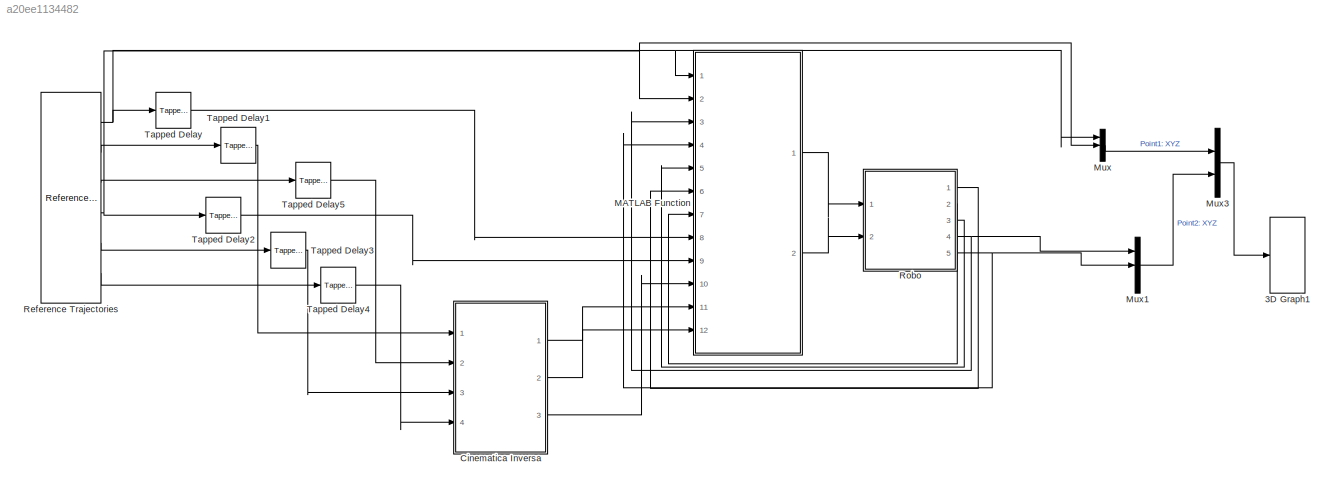
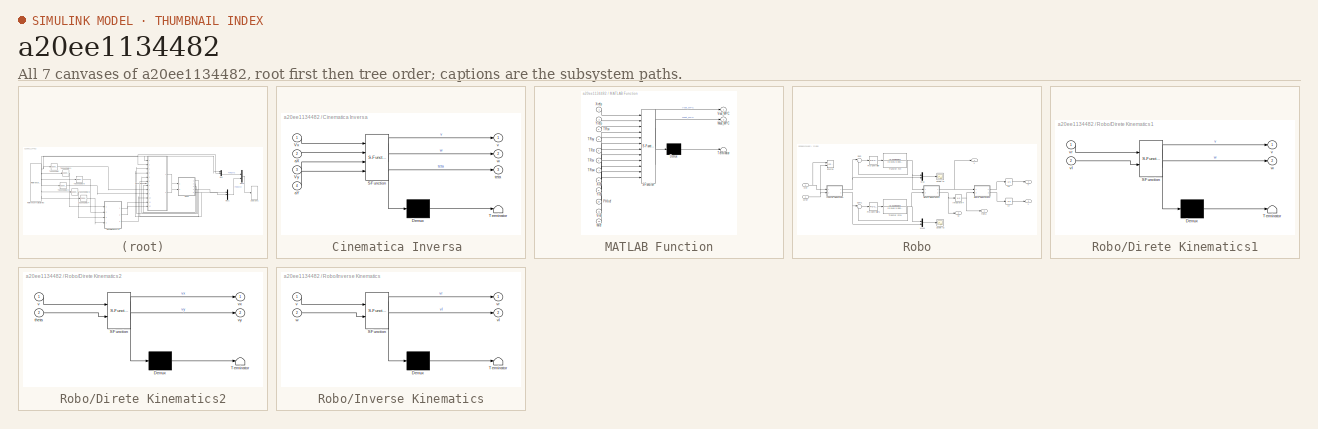
[diagram: thumbnail index - all 7 canvases of the model, root first then tree order]
MODEL slx_a20ee1134482
KIND model
CONFIG AbsTol = auto
CONFIG EnableMultiTasking = off
CONFIG FixedStep = 0.04
CONFIG MaxStep = auto
CONFIG MinStep = auto
CONFIG RelTol = 1e-3
CONFIG SampleTimeConstraint = Unconstrained
CONFIG Solver = ode4
CONFIG SolverName = ode4
CONFIG StartTime = 0.0
CONFIG StopTime = 100
BLOCK [S-Function] 3D Graph1
  CopyFcn = if exist('sfun3d','file'), sfun3d([],[],[],'CopyBlock'); end
  DeleteFcn = if exist('sfun3d','file'), sfun3d([],[],[],'DeleteBlock'); end
  EnableBusSupport = off
  FunctionName = sfun3d
  LoadFcn = if exist('sfun3d','file'), sfun3d([],[],[],'LoadBlock'); end
  NameChangeFcn = if exist('sfun3d','file'), sfun3d([],[],[],'NameChange'); end
  Parameters = ax,T,np,cp,gd,ls,mk,mx,hd,tb
  Ports = [1]
  SFcnIsStateOwnerBlock = off
  SFunctionDeploymentMode = off
BLOCK [SubSystem] Cinematica Inversa 
  ErrorFcn = Stateflow.Translate.translate
  PermitHierarchicalResolution = ExplicitOnly
  Ports = [4, 3]
  RequestExecContextInheritance = off
  SFBlockType = MATLAB Function
  TreatAsAtomicUnit = on
BLOCK [Demux] Cinematica Inversa / Demux 
  Outputs = 1
  Ports = [1, 1]
BLOCK [S-Function] Cinematica Inversa / SFunction 
  EnableBusSupport = on
  FunctionName = sf_sfun
  PortCounts = [4 4]
  Ports = [4, 4]
  SFcnIsStateOwnerBlock = off
  SFunctionDeploymentMode = off
  Tag = Stateflow S-Function modeloSimulink 5
BLOCK [Terminator] Cinematica Inversa / Terminator 
BLOCK [Inport] Cinematica Inversa /Vx
  IconDisplay = Port number
BLOCK [Inport] Cinematica Inversa /Vy
  IconDisplay = Port number
  Port = 3
BLOCK [Inport] Cinematica Inversa /aX
  IconDisplay = Port number
  Port = 2
BLOCK [Inport] Cinematica Inversa /aY
  IconDisplay = Port number
  Port = 4
BLOCK [Outport] Cinematica Inversa /teta
  IconDisplay = Port number
  Port = 3
BLOCK [Outport] Cinematica Inversa /v
  IconDisplay = Port number
BLOCK [Outport] Cinematica Inversa /w
  IconDisplay = Port number
  Port = 2
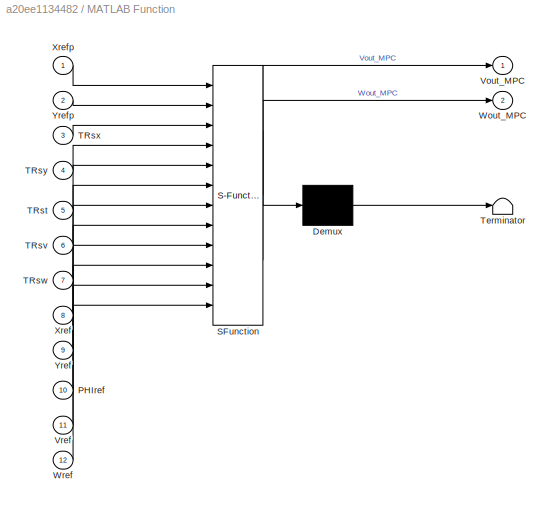
BLOCK [SubSystem] MATLAB Function
  ErrorFcn = Stateflow.Translate.translate
  PermitHierarchicalResolution = ExplicitOnly
  Ports = [12, 2]
  RequestExecContextInheritance = off
  SFBlockType = MATLAB Function
  TreatAsAtomicUnit = on
BLOCK [Demux] MATLAB Function/ Demux 
  Outputs = 1
  Ports = [1, 1]
BLOCK [S-Function] MATLAB Function/ SFunction 
  EnableBusSupport = on
  FunctionName = sf_sfun
  PortCounts = [12 3]
  Ports = [12, 3]
  SFcnIsStateOwnerBlock = off
  SFunctionDeploymentMode = off
  Tag = Stateflow S-Function modeloSimulink 4
BLOCK [Terminator] MATLAB Function/ Terminator 
BLOCK [Inport] MATLAB Function/PHIref
  IconDisplay = Port number
  Port = 10
BLOCK [Inport] MATLAB Function/TRst
  IconDisplay = Port number
  Port = 5
BLOCK [Inport] MATLAB Function/TRsv
  IconDisplay = Port number
  Port = 6
BLOCK [Inport] MATLAB Function/TRsw
  IconDisplay = Port number
  Port = 7
BLOCK [Inport] MATLAB Function/TRsx
  IconDisplay = Port number
  Port = 3
BLOCK [Inport] MATLAB Function/TRsy
  IconDisplay = Port number
  Port = 4
BLOCK [Outport] MATLAB Function/Vout_MPC
  IconDisplay = Port number
BLOCK [Inport] MATLAB Function/Vref
  IconDisplay = Port number
  Port = 11
BLOCK [Outport] MATLAB Function/Wout_MPC
  IconDisplay = Port number
  Port = 2
BLOCK [Inport] MATLAB Function/Wref
  IconDisplay = Port number
  Port = 12
BLOCK [Inport] MATLAB Function/Xref
  IconDisplay = Port number
  Port = 8
BLOCK [Inport] MATLAB Function/Xrefp
  IconDisplay = Port number
BLOCK [Inport] MATLAB Function/Yref
  IconDisplay = Port number
  Port = 9
BLOCK [Inport] MATLAB Function/Yrefp
  IconDisplay = Port number
  Port = 2
BLOCK [Mux] Mux
  DisplayOption = bar
  Inputs = 3
  Ports = [3, 1]
BLOCK [Mux] Mux1
  DisplayOption = bar
  Inputs = 3
  Ports = [3, 1]
BLOCK [Mux] Mux3
  DisplayOption = bar
  Inputs = 2
  Ports = [2, 1]
BLOCK [Reference] Reference Trajectories  REF=Controllers/Reference
Trajectories
  Ports = [0, 6]
  SourceBlock = Controllers/Reference\nTrajectories
  SourceType = Reference Trajectories
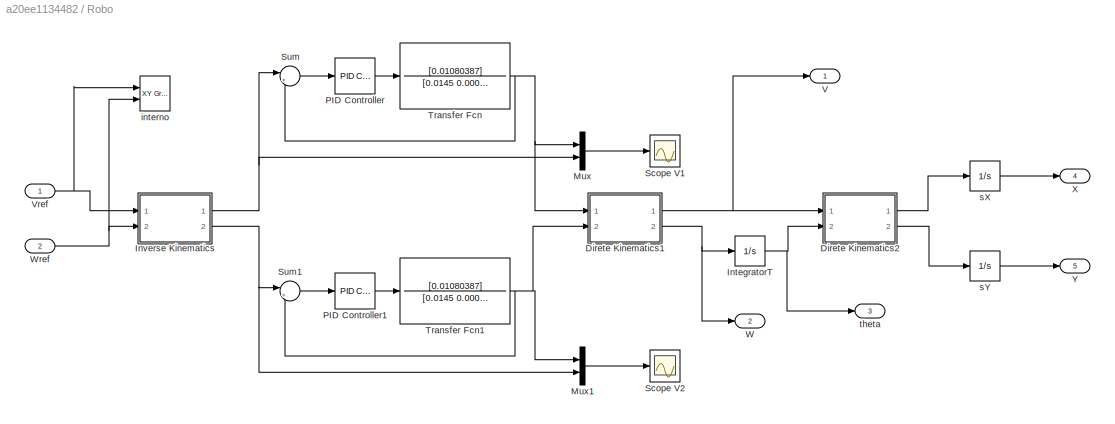
BLOCK [SubSystem] Robo
  Ports = [2, 5]
  RequestExecContextInheritance = off
BLOCK [SubSystem] Robo/Direte Kinematics1
  ErrorFcn = Stateflow.Translate.translate
  PermitHierarchicalResolution = ExplicitOnly
  Ports = [2, 2]
  RequestExecContextInheritance = off
  SFBlockType = MATLAB Function
  TreatAsAtomicUnit = on
BLOCK [Demux] Robo/Direte Kinematics1/ Demux 
  Outputs = 1
  Ports = [1, 1]
BLOCK [S-Function] Robo/Direte Kinematics1/ SFunction 
  EnableBusSupport = on
  FunctionName = sf_sfun
  PortCounts = [2 3]
  Ports = [2, 3]
  SFcnIsStateOwnerBlock = off
  SFunctionDeploymentMode = off
  Tag = Stateflow S-Function modeloSimulink 1
BLOCK [Terminator] Robo/Direte Kinematics1/ Terminator 
BLOCK [Outport] Robo/Direte Kinematics1/v
  IconDisplay = Port number
BLOCK [Inport] Robo/Direte Kinematics1/vl
  IconDisplay = Port number
  Port = 2
BLOCK [Inport] Robo/Direte Kinematics1/vr
  IconDisplay = Port number
BLOCK [Outport] Robo/Direte Kinematics1/w
  IconDisplay = Port number
  Port = 2
BLOCK [SubSystem] Robo/Direte Kinematics2
  ErrorFcn = Stateflow.Translate.translate
  PermitHierarchicalResolution = ExplicitOnly
  Ports = [2, 2]
  RequestExecContextInheritance = off
  SFBlockType = MATLAB Function
  TreatAsAtomicUnit = on
BLOCK [Demux] Robo/Direte Kinematics2/ Demux 
  Outputs = 1
  Ports = [1, 1]
BLOCK [S-Function] Robo/Direte Kinematics2/ SFunction 
  EnableBusSupport = on
  FunctionName = sf_sfun
  PortCounts = [2 3]
  Ports = [2, 3]
  SFcnIsStateOwnerBlock = off
  SFunctionDeploymentMode = off
  Tag = Stateflow S-Function modeloSimulink 3
BLOCK [Terminator] Robo/Direte Kinematics2/ Terminator 
BLOCK [Inport] Robo/Direte Kinematics2/theta
  IconDisplay = Port number
  Port = 2
BLOCK [Inport] Robo/Direte Kinematics2/v
  IconDisplay = Port number
BLOCK [Outport] Robo/Direte Kinematics2/vx
  IconDisplay = Port number
BLOCK [Outport] Robo/Direte Kinematics2/vy
  IconDisplay = Port number
  Port = 2
BLOCK [Integrator] Robo/IntegratorT
  Ports = [1, 1]
BLOCK [SubSystem] Robo/Inverse Kinematics
  ErrorFcn = Stateflow.Translate.translate
  PermitHierarchicalResolution = ExplicitOnly
  Ports = [2, 2]
  RequestExecContextInheritance = off
  SFBlockType = MATLAB Function
  TreatAsAtomicUnit = on
BLOCK [Demux] Robo/Inverse Kinematics/ Demux 
  Outputs = 1
  Ports = [1, 1]
BLOCK [S-Function] Robo/Inverse Kinematics/ SFunction 
  EnableBusSupport = on
  FunctionName = sf_sfun
  PortCounts = [2 3]
  Ports = [2, 3]
  SFcnIsStateOwnerBlock = off
  SFunctionDeploymentMode = off
  Tag = Stateflow S-Function modeloSimulink 2
BLOCK [Terminator] Robo/Inverse Kinematics/ Terminator 
BLOCK [Inport] Robo/Inverse Kinematics/v
  IconDisplay = Port number
BLOCK [Outport] Robo/Inverse Kinematics/vl
  IconDisplay = Port number
  Port = 2
BLOCK [Outport] Robo/Inverse Kinematics/vr
  IconDisplay = Port number
BLOCK [Inport] Robo/Inverse Kinematics/w
  IconDisplay = Port number
  Port = 2
BLOCK [Mux] Robo/Mux
  DisplayOption = bar
  Inputs = 2
  Ports = [2, 1]
BLOCK [Mux] Robo/Mux1
  DisplayOption = bar
  Inputs = 2
  Ports = [2, 1]
BLOCK [Reference] Robo/PID Controller  REF=simulink/Continuous/PID Controller
  Ports = [1, 1]
  SourceBlock = simulink/Continuous/PID Controller
  SourceProductBaseCode = SL
  SourceProductName = Simulink
  SourceType = PID 1dof
BLOCK [Reference] Robo/PID Controller1  REF=simulink/Continuous/PID Controller
  Ports = [1, 1]
  SourceBlock = simulink/Continuous/PID Controller
  SourceProductBaseCode = SL
  SourceProductName = Simulink
  SourceType = PID 1dof
BLOCK [Scope] Robo/Scope V1
  Floating = off
  NumInputPorts = 1
  Ports = [1]
  ScopeSpecificationString = Simulink.scopes.TimeScopeBlockCfg('CurrentConfiguration', extmgr.ConfigurationSet(extmgr.Configuration('Core','General UI',true),extmgr.Configuration('Core','Source UI',true),extmgr.Configuration('Sources','WiredSimulink',true),extmgr.Configuration('Visuals','Time Domain',true,'SerializedDisplays',{struct('MinYLimReal','-16.16962','MaxYLimReal','1.79662','YLabelReal','','MinYLimMag','0.00000','Max...<+1414ch>
BLOCK [Scope] Robo/Scope V2
  Floating = off
  NumInputPorts = 1
  Ports = [1]
  ScopeSpecificationString = Simulink.scopes.TimeScopeBlockCfg('CurrentConfiguration', extmgr.ConfigurationSet(extmgr.Configuration('Core','General UI',true),extmgr.Configuration('Core','Source UI',true),extmgr.Configuration('Sources','WiredSimulink',true,'DataLoggingVariableName','ScopeData1'),extmgr.Configuration('Visuals','Time Domain',true,'SerializedDisplays',{struct('MinYLimReal','-2.0479','MaxYLimReal','18.4311','YLabe...<+1421ch>
BLOCK [Sum] Robo/Sum
  IconShape = round
  InputSameDT = off
  Inputs = |+-
  OutDataTypeStr = Inherit: Inherit via internal rule
  Ports = [2, 1]
  SaturateOnIntegerOverflow = off
BLOCK [Sum] Robo/Sum1
  IconShape = round
  InputSameDT = off
  Inputs = |+-
  OutDataTypeStr = Inherit: Inherit via internal rule
  Ports = [2, 1]
  SaturateOnIntegerOverflow = off
BLOCK [TransferFcn] Robo/Transfer Fcn
  Denominator = [0.0145 0.000125695934]
  Numerator = [0.01080387]
BLOCK [TransferFcn] Robo/Transfer Fcn1
  Denominator = [0.0145 0.000125695934]
  Numerator = [0.01080387]
BLOCK [Outport] Robo/V
  IconDisplay = Port number
BLOCK [Inport] Robo/Vref 
  IconDisplay = Port number
BLOCK [Outport] Robo/W
  IconDisplay = Port number
  Port = 2
BLOCK [Inport] Robo/Wref 
  IconDisplay = Port number
  Port = 2
BLOCK [Outport] Robo/X
  IconDisplay = Port number
  Port = 4
BLOCK [Outport] Robo/Y
  IconDisplay = Port number
  Port = 5
BLOCK [Reference] Robo/interno  REF=simulink/Sinks/XY Graph
  Ports = [2]
  SourceBlock = simulink/Sinks/XY Graph
  SourceProductBaseCode = SL
  SourceProductName = Simulink
  SourceType = XY scope.
BLOCK [Integrator] Robo/sX
  Ports = [1, 1]
BLOCK [Integrator] Robo/sY
  Ports = [1, 1]
BLOCK [Outport] Robo/theta
  IconDisplay = Port number
  Port = 3
BLOCK [Reference] Tapped Delay  REF=simulink/Discrete/Tapped Delay
  Ports = [1, 1]
  SourceBlock = simulink/Discrete/Tapped Delay
  SourceProductBaseCode = SL
  SourceProductName = Simulink
  SourceType = Tapped Delay Line
BLOCK [Reference] Tapped Delay1  REF=simulink/Discrete/Tapped Delay
  Ports = [1, 1]
  SourceBlock = simulink/Discrete/Tapped Delay
  SourceProductBaseCode = SL
  SourceProductName = Simulink
  SourceType = Tapped Delay Line
BLOCK [Reference] Tapped Delay2  REF=simulink/Discrete/Tapped Delay
  Ports = [1, 1]
  SourceBlock = simulink/Discrete/Tapped Delay
  SourceProductBaseCode = SL
  SourceProductName = Simulink
  SourceType = Tapped Delay Line
BLOCK [Reference] Tapped Delay3  REF=simulink/Discrete/Tapped Delay
  Ports = [1, 1]
  SourceBlock = simulink/Discrete/Tapped Delay
  SourceProductBaseCode = SL
  SourceProductName = Simulink
  SourceType = Tapped Delay Line
BLOCK [Reference] Tapped Delay4  REF=simulink/Discrete/Tapped Delay
  Ports = [1, 1]
  SourceBlock = simulink/Discrete/Tapped Delay
  SourceProductBaseCode = SL
  SourceProductName = Simulink
  SourceType = Tapped Delay Line
BLOCK [Reference] Tapped Delay5  REF=simulink/Discrete/Tapped Delay
  Ports = [1, 1]
  SourceBlock = simulink/Discrete/Tapped Delay
  SourceProductBaseCode = SL
  SourceProductName = Simulink
  SourceType = Tapped Delay Line
LINE Cinematica Inversa :1 -> MATLAB Function:11
LINE Cinematica Inversa :2 -> MATLAB Function:12
LINE Cinematica Inversa :3 -> MATLAB Function:10
LINE MATLAB Function:1 -> Robo:1
LINE MATLAB Function:2 -> Robo:2
LINE Mux1:1 -> Mux3:2
LINE Mux3:1 -> 3D Graph1:1
LINE Mux:1 -> Mux3:1
NET Reference Trajectories:1 -> MATLAB Function:1, Mux:1, Tapped Delay:1
LINE Reference Trajectories:2 -> Tapped Delay1:1
LINE Reference Trajectories:3 -> Tapped Delay5:1
NET Reference Trajectories:4 -> MATLAB Function:2, Mux:2, Tapped Delay2:1
LINE Reference Trajectories:5 -> Tapped Delay3:1
LINE Reference Trajectories:6 -> Tapped Delay4:1
NET Robo/Direte Kinematics1:1 -> Robo/Direte Kinematics2:1, Robo/V:1
NET Robo/Direte Kinematics1:2 -> Robo/IntegratorT:1, Robo/W:1
LINE Robo/Direte Kinematics2:1 -> Robo/sX:1
LINE Robo/Direte Kinematics2:2 -> Robo/sY:1
NET Robo/IntegratorT:1 -> Robo/Direte Kinematics2:2, Robo/theta:1
NET Robo/Inverse Kinematics:1 -> Robo/Mux:2, Robo/Sum:1
NET Robo/Inverse Kinematics:2 -> Robo/Mux1:2, Robo/Sum1:1
LINE Robo/Mux1:1 -> Robo/Scope V2:1
LINE Robo/Mux:1 -> Robo/Scope V1:1
LINE Robo/PID Controller1:1 -> Robo/Transfer Fcn1:1
LINE Robo/PID Controller:1 -> Robo/Transfer Fcn:1
LINE Robo/Sum1:1 -> Robo/PID Controller1:1
LINE Robo/Sum:1 -> Robo/PID Controller:1
NET Robo/Transfer Fcn1:1 -> Robo/Direte Kinematics1:2, Robo/Mux1:1, Robo/Sum1:2
NET Robo/Transfer Fcn:1 -> Robo/Direte Kinematics1:1, Robo/Mux:1, Robo/Sum:2
NET Robo/Vref :1 -> Robo/Inverse Kinematics:1, Robo/interno:1
NET Robo/Wref :1 -> Robo/Inverse Kinematics:2, Robo/interno:2
LINE Robo/sX:1 -> Robo/X:1
LINE Robo/sY:1 -> Robo/Y:1
LINE Robo:1 -> MATLAB Function:6
LINE Robo:2 -> MATLAB Function:7
LINE Robo:3 -> MATLAB Function:5
NET Robo:4 -> MATLAB Function:3, Mux1:1
NET Robo:5 -> MATLAB Function:4, Mux1:2
LINE Tapped Delay1:1 -> Cinematica Inversa :1
LINE Tapped Delay2:1 -> MATLAB Function:9
LINE Tapped Delay3:1 -> Cinematica Inversa :3
LINE Tapped Delay4:1 -> Cinematica Inversa :4
LINE Tapped Delay5:1 -> Cinematica Inversa :2
LINE Tapped Delay:1 -> MATLAB Function:8
note: NET lines group one-source signal fan-out (src -> all destinations, sorted); 1:1 wires keep LINE
CHART Robo/Direte Kinematics1 states=1 transitions=1
  STATE_LABEL 'eML_blk_kernel()'
  STATE_LABEL 'SCRIPT:\n%function y = fcn(u)\nfunction [v,w] = fcn(vr,vl)\n    L = 2 * 0.17;\n    v = (vr + vl)/2;\n    w = (vr - vl)/L;\nend\n'
CHART Robo/Inverse Kinematics states=1 transitions=1
  STATE_LABEL 'eML_blk_kernel()'
  STATE_LABEL 'SCRIPT:\n%function y = fcn(u)\nfunction [vr,vl] = fcn(v,w)\n    L = 2 * 0.17;\n    vr = v + (w * L)/2;\n    vl = v - (w * L)/2;\nend\n\n'
CHART Robo/Direte Kinematics2 states=1 transitions=1
  STATE_LABEL 'eML_blk_kernel()'
  STATE_LABEL 'SCRIPT:\n%function y = fcn(u)\nfunction [vx,vy] = fcn(v,theta)\n    vx = v * cos(theta);\n    vy = v * sin(theta);\nend'
CHART MATLAB Function states=1 transitions=1
  STATE_LABEL 'eML_blk_kernel()'
  STATE_LABEL 'SCRIPT:\nfunction [Vout_MPC, Wout_MPC] = MPC(Xrefp, Yrefp, TRsx, TRsy, TRst, TRsv, TRsw,Xref, Yref, PHIref, Vref, Wref)\n    % Parâmetros do controlador\n    Vmax = 0.4;\n    d = 0.23;\n    N1 = 1;\n    N2 = 10; %Horizonte de predição\n    Nu = 2;  %Horizonte de controle\n    L1 = 1;\n    L2 = 2.5;\n    L3 = 1;\n    eta = 0.1;\n    Imax = 15;\n    I = 0;\n    Delta = 0.1;\n    \n    % Parâmetros do Otimizador\n   ...<+3608ch>'
CHART Cinematica Inversa
 states=1 transitions=1
  STATE_LABEL 'eML_blk_kernel()'
  STATE_LABEL 'SCRIPT:\nfunction [v,w,teta] = fnc(Vx, aX, Vy, aY)\n  \n    teta = atan2(Vy,Vx);\n    \n    v = sqrt(Vx^2 + Vy^2);\n    \n    w = (Vx*aY - Vy*aX)/(Vx^2 + Vy^2);\n\nend\n'
